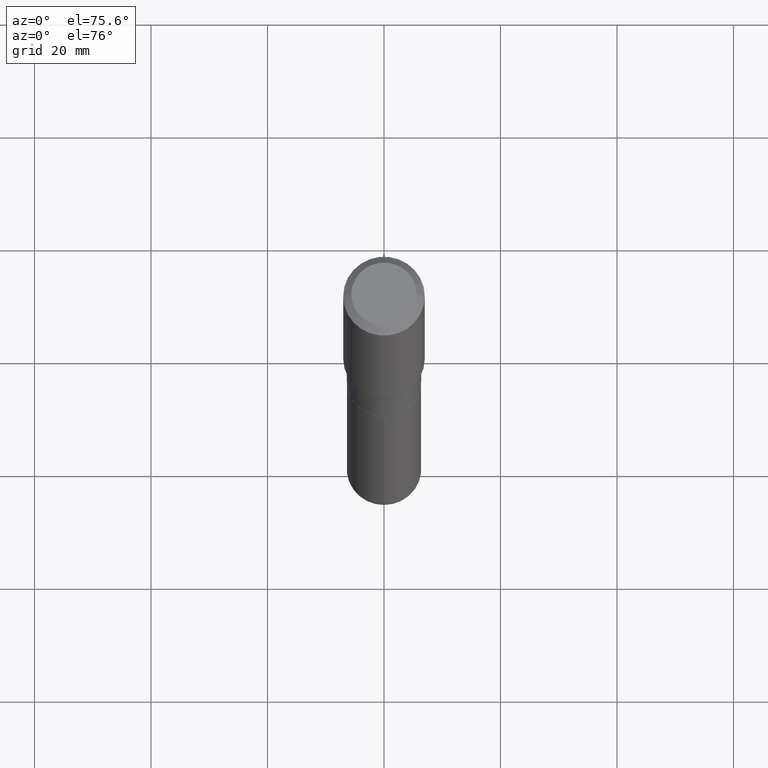
[diagram: clean part render]
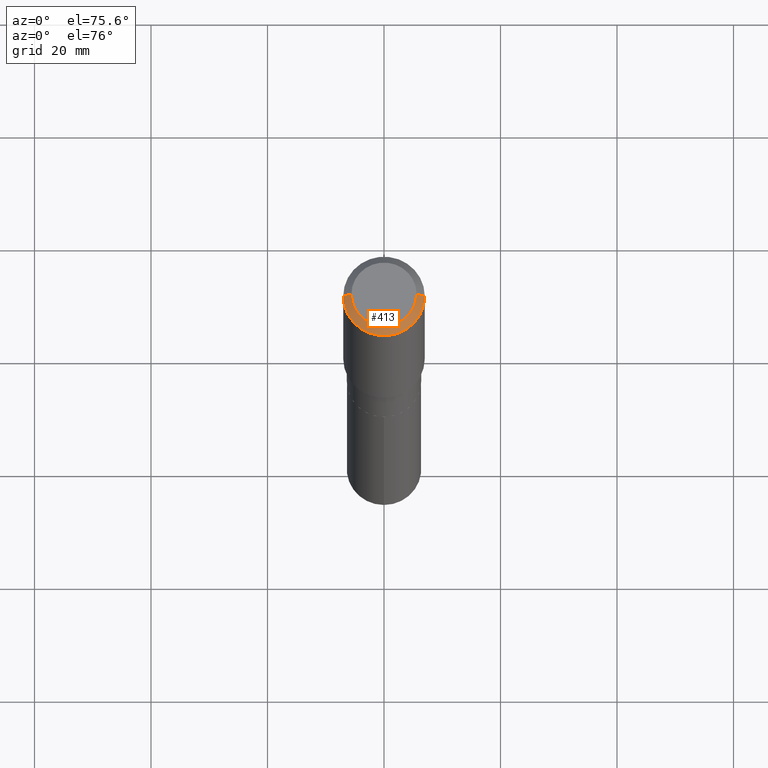
[diagram: same view with one face highlighted and labeled with its STEP entity id]
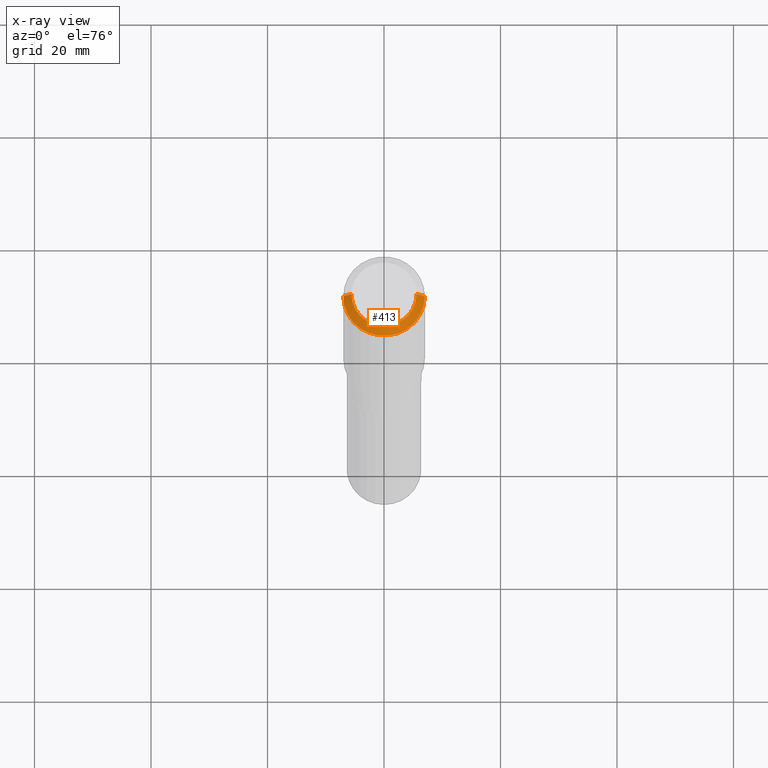
[diagram: x-ray of the same camera — body ghosted, the highlighted face saturated]
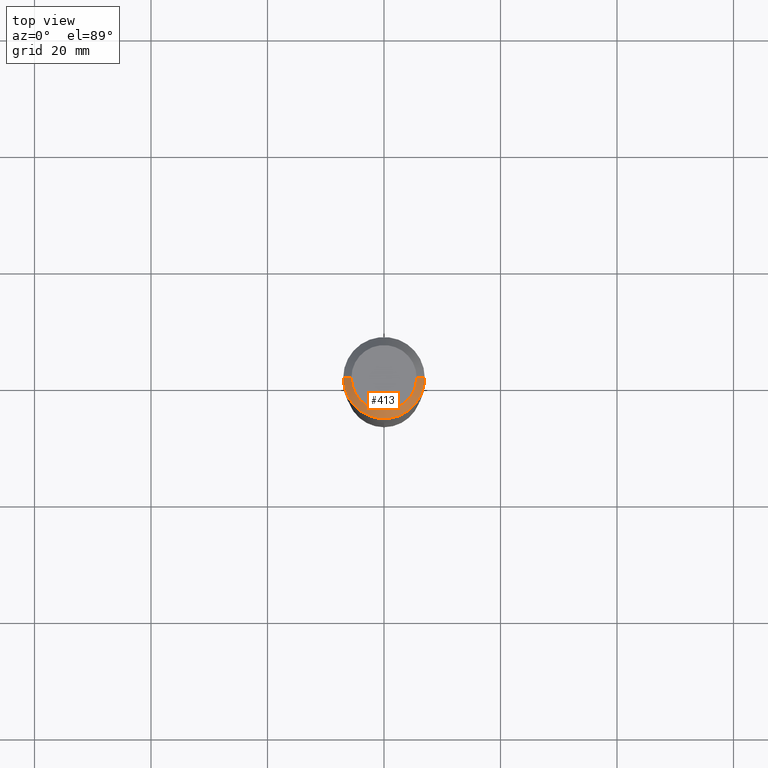
[diagram: same view with one face highlighted and labeled with its STEP entity id]
A machine part, auxiliary view. The second image highlights one B-rep face of the part: STEP entity #413.
The next image is the same camera in x-ray: the body ghosted, the highlighted face saturated — about 0% of this face is hidden behind the body in this view.
A second angle (top view) of the same face is appended — the face is thin or edge-on in the first view.
In plain terms, the highlighted conical surface has half-angle 45 deg.
Its self-contained STEP definition (entity closure, byte-faithful):
#8 = AXIS2_PLACEMENT_3D ( 'NONE', #151, #112, #265 ) ;
#19 = DIRECTION ( 'NONE',  ( 1.000000000000000000, -6.982962677686265922E-15, 0.000000000000000000 ) ) ;
#26 = CARTESIAN_POINT ( 'NONE',  ( -9.439721640706190018E-47, 1.347742071746724849E-32, 3.860086710912454339E-18 ) ) ;
#35 = VERTEX_POINT ( 'NONE', #57 ) ;
#38 = EDGE_CURVE ( 'NONE', #417, #356, #431, .T. ) ;
#57 = CARTESIAN_POINT ( 'NONE',  ( 0.2204800000000000093, -1.797903149065768707E-15, 3.860086710924123164E-18 ) ) ;
#85 = DIRECTION ( 'NONE',  ( -2.445468806185136597E-29, 3.491481338843145583E-15, 1.000000000000000000 ) ) ;
#87 = CARTESIAN_POINT ( 'NONE',  ( -0.2756000000000000116, -1.195023219201267341E-15, -0.05512000000000035621 ) ) ;
#88 = ORIENTED_EDGE ( 'NONE', *, *, #178, .F. ) ;
#95 = AXIS2_PLACEMENT_3D ( 'NONE', #166, #85, #19 ) ;
#99 = CARTESIAN_POINT ( 'NONE',  ( -0.2756000000000000116, 1.732054062573300039E-15, -0.05512000000000035621 ) ) ;
#106 = DIRECTION ( 'NONE',  ( -0.7071067811865453523, 2.468850131082234184E-15, -0.7071067811865496822 ) ) ;
#112 = DIRECTION ( 'NONE',  ( 2.445468806185136597E-29, -3.491481338843145583E-15, -1.000000000000000000 ) ) ;
#135 = LINE ( 'NONE', #99, #256 ) ;
#151 = CARTESIAN_POINT ( 'NONE',  ( 1.347942405969256063E-30, -1.924504513970354330E-16, -0.05512000000000035621 ) ) ;
#152 = AXIS2_PLACEMENT_3D ( 'NONE', #26, #177, #293 ) ;
#166 = CARTESIAN_POINT ( 'NONE',  ( 1.347942405969256063E-30, -1.924504513970354330E-16, -0.05512000000000035621 ) ) ;
#171 = EDGE_CURVE ( 'NONE', #249, #417, #135, .T. ) ;
#177 = DIRECTION ( 'NONE',  ( -2.445468806185136597E-29, 3.491481338843145583E-15, 1.000000000000000000 ) ) ;
#178 = EDGE_CURVE ( 'NONE', #249, #35, #409, .T. ) ;
#215 = VECTOR ( 'NONE', #301, 39.37007874015748143 ) ;
#249 = VERTEX_POINT ( 'NONE', #399 ) ;
#256 = VECTOR ( 'NONE', #106, 39.37007874015748143 ) ;
#265 = DIRECTION ( 'NONE',  ( -1.000000000000000000, 6.982962677686269077E-15, 0.000000000000000000 ) ) ;
#270 = LINE ( 'NONE', #419, #215 ) ;
#293 = DIRECTION ( 'NONE',  ( 1.000000000000000000, -6.982962677686266711E-15, 4.876132675269083677E-29 ) ) ;
#301 = DIRECTION ( 'NONE',  ( 0.7071067811865453523, -7.319954787623248157E-15, -0.7071067811865496822 ) ) ;
#303 = EDGE_LOOP ( 'NONE', ( #489, #88, #449, #337 ) ) ;
#337 = ORIENTED_EDGE ( 'NONE', *, *, #38, .T. ) ;
#356 = VERTEX_POINT ( 'NONE', #455 ) ;
#389 = EDGE_CURVE ( 'NONE', #35, #356, #270, .T. ) ;
#399 = CARTESIAN_POINT ( 'NONE',  ( -0.2204800000000000093, 1.635828836874783961E-15, 3.860086710901350968E-18 ) ) ;
#409 = CIRCLE ( 'NONE', #152, 0.2204800000000000093 ) ;
#413 = ADVANCED_FACE ( 'NONE', ( #488 ), #445, .T. ) ;
#417 = VERTEX_POINT ( 'NONE', #87 ) ;
#419 = CARTESIAN_POINT ( 'NONE',  ( 0.2756000000000000116, -2.083203699582869812E-15, -0.05512000000000035621 ) ) ;
#431 = CIRCLE ( 'NONE', #95, 0.2756000000000000116 ) ;
#445 = CONICAL_SURFACE ( 'NONE', #8, 0.2756000000000000116, 0.7853981633974452814 ) ;
#449 = ORIENTED_EDGE ( 'NONE', *, *, #171, .T. ) ;
#455 = CARTESIAN_POINT ( 'NONE',  ( 0.2756000000000000116, -2.116954965367370658E-15, -0.05512000000000035621 ) ) ;
#488 = FACE_OUTER_BOUND ( 'NONE', #303, .T. ) ;
#489 = ORIENTED_EDGE ( 'NONE', *, *, #389, .F. ) ;